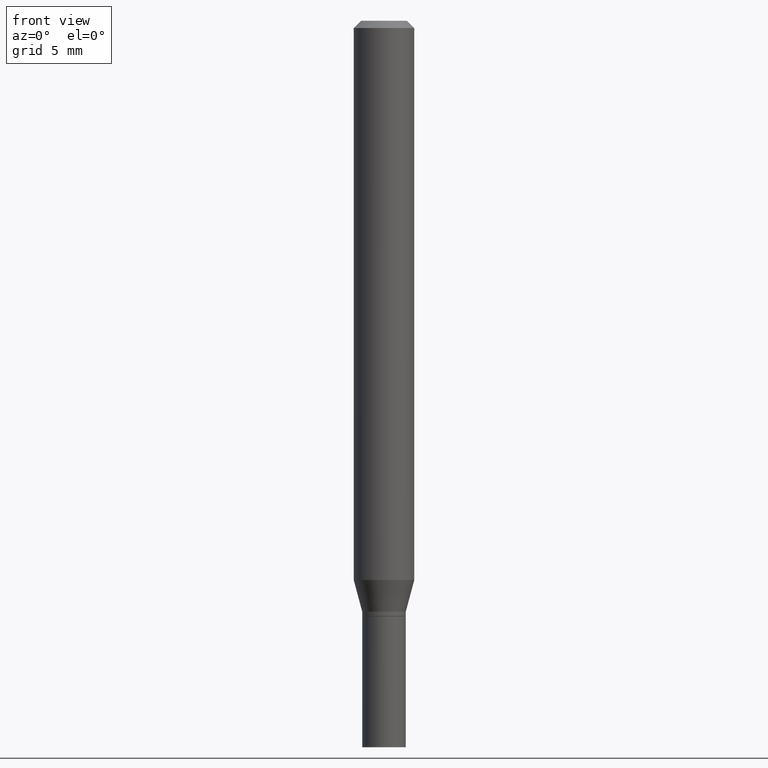
[diagram: clean part render]
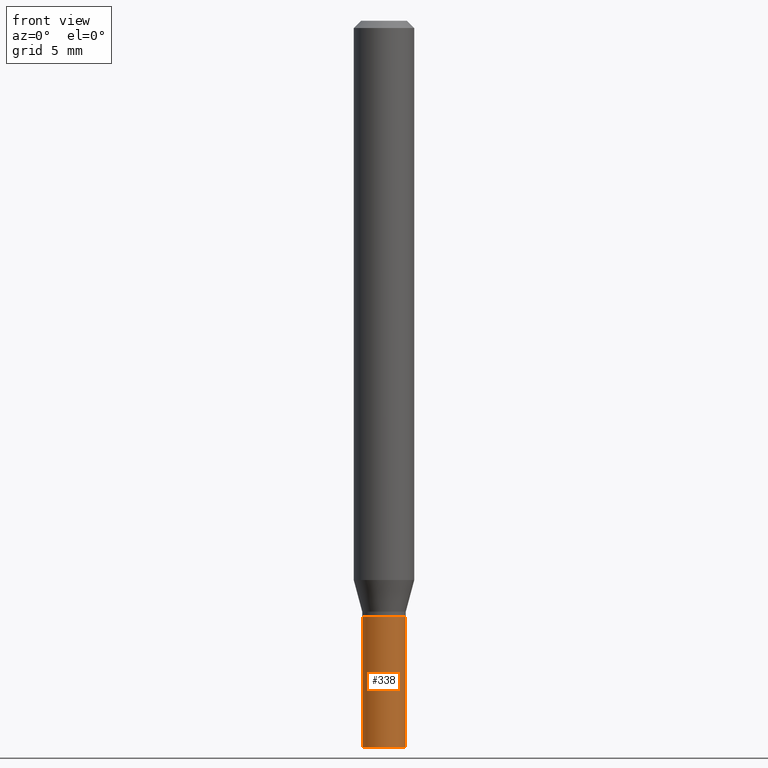
[diagram: same view with one face highlighted and labeled with its STEP entity id]
A machine part, front view. The second image highlights one B-rep face of the part: STEP entity #338.
In plain terms, the highlighted cylindrical surface (edge-blend (fillet) strip) has radius 1.143 mm, axis along (-0, 0, 1).
Its self-contained STEP definition (entity closure, byte-faithful):
#2 = FACE_OUTER_BOUND ( 'NONE', #430, .T. ) ;
#15 = DIRECTION ( 'NONE',  ( -2.445468806185136597E-29, 3.491481338843145583E-15, 1.000000000000000000 ) ) ;
#17 = CIRCLE ( 'NONE', #50, 0.04499999999999999833 ) ;
#18 = DIRECTION ( 'NONE',  ( 1.000000000000000000, -6.982962677686269077E-15, 0.000000000000000000 ) ) ;
#29 = ORIENTED_EDGE ( 'NONE', *, *, #96, .T. ) ;
#35 = ORIENTED_EDGE ( 'NONE', *, *, #284, .F. ) ;
#43 = VERTEX_POINT ( 'NONE', #181 ) ;
#44 = CIRCLE ( 'NONE', #207, 0.04499999999999999833 ) ;
#50 = AXIS2_PLACEMENT_3D ( 'NONE', #135, #276, #18 ) ;
#72 = LINE ( 'NONE', #109, #403 ) ;
#96 = EDGE_CURVE ( 'NONE', #43, #293, #17, .T. ) ;
#109 = CARTESIAN_POINT ( 'NONE',  ( 0.04499999999999999833, -3.142333204958819823E-16, 2.194279549108170967E-30 ) ) ;
#112 = CARTESIAN_POINT ( 'NONE',  ( 0.04499999999999999833, -5.551455328760600652E-15, -1.500000000000000222 ) ) ;
#113 = VERTEX_POINT ( 'NONE', #199 ) ;
#119 = CARTESIAN_POINT ( 'NONE',  ( 0.000000000000000000, 0.000000000000000000, 0.000000000000000000 ) ) ;
#135 = CARTESIAN_POINT ( 'NONE',  ( 3.668203209277704895E-29, -5.237222008264718177E-15, -1.500000000000000222 ) ) ;
#143 = ORIENTED_EDGE ( 'NONE', *, *, #265, .T. ) ;
#146 = CARTESIAN_POINT ( 'NONE',  ( -0.04499999999999999833, 3.197442310920450718E-16, -2.213520790614707560E-30 ) ) ;
#148 = CYLINDRICAL_SURFACE ( 'NONE', #368, 0.04499999999999999833 ) ;
#163 = DIRECTION ( 'NONE',  ( 1.000000000000000000, -6.982962677686269077E-15, 0.000000000000000000 ) ) ;
#181 = CARTESIAN_POINT ( 'NONE',  ( -0.04499999999999999833, -4.446127796428848702E-15, -1.500000000000000222 ) ) ;
#182 = LINE ( 'NONE', #146, #374 ) ;
#187 = CARTESIAN_POINT ( 'NONE',  ( 0.04499999999999999833, -4.608755367272951648E-15, -1.230000000000000204 ) ) ;
#188 = EDGE_CURVE ( 'NONE', #113, #463, #44, .T. ) ;
#199 = CARTESIAN_POINT ( 'NONE',  ( -0.04499999999999999833, -4.446127796428848702E-15, -1.230000000000000204 ) ) ;
#207 = AXIS2_PLACEMENT_3D ( 'NONE', #417, #15, #163 ) ;
#244 = DIRECTION ( 'NONE',  ( 1.000000000000000000, -6.982962677686266711E-15, 4.876176775795935793E-29 ) ) ;
#265 = EDGE_CURVE ( 'NONE', #293, #463, #72, .T. ) ;
#276 = DIRECTION ( 'NONE',  ( -2.445468806185136597E-29, 3.491481338843145583E-15, 1.000000000000000000 ) ) ;
#280 = DIRECTION ( 'NONE',  ( -2.445468806185136597E-29, 3.491481338843145583E-15, 1.000000000000000000 ) ) ;
#284 = EDGE_CURVE ( 'NONE', #43, #113, #182, .T. ) ;
#287 = DIRECTION ( 'NONE',  ( -2.445468806185136877E-29, 3.491481338843145188E-15, 1.000000000000000000 ) ) ;
#293 = VERTEX_POINT ( 'NONE', #112 ) ;
#313 = ORIENTED_EDGE ( 'NONE', *, *, #188, .F. ) ;
#338 = ADVANCED_FACE ( 'NONE', ( #2 ), #148, .T. ) ;
#368 = AXIS2_PLACEMENT_3D ( 'NONE', #119, #280, #244 ) ;
#374 = VECTOR ( 'NONE', #287, 39.37007874015748143 ) ;
#403 = VECTOR ( 'NONE', #466, 39.37007874015748143 ) ;
#417 = CARTESIAN_POINT ( 'NONE',  ( 3.007926631607718216E-29, -4.294522046777069173E-15, -1.230000000000000204 ) ) ;
#430 = EDGE_LOOP ( 'NONE', ( #35, #29, #143, #313 ) ) ;
#463 = VERTEX_POINT ( 'NONE', #187 ) ;
#466 = DIRECTION ( 'NONE',  ( -2.445468806185136877E-29, 3.491481338843145188E-15, 1.000000000000000000 ) ) ;